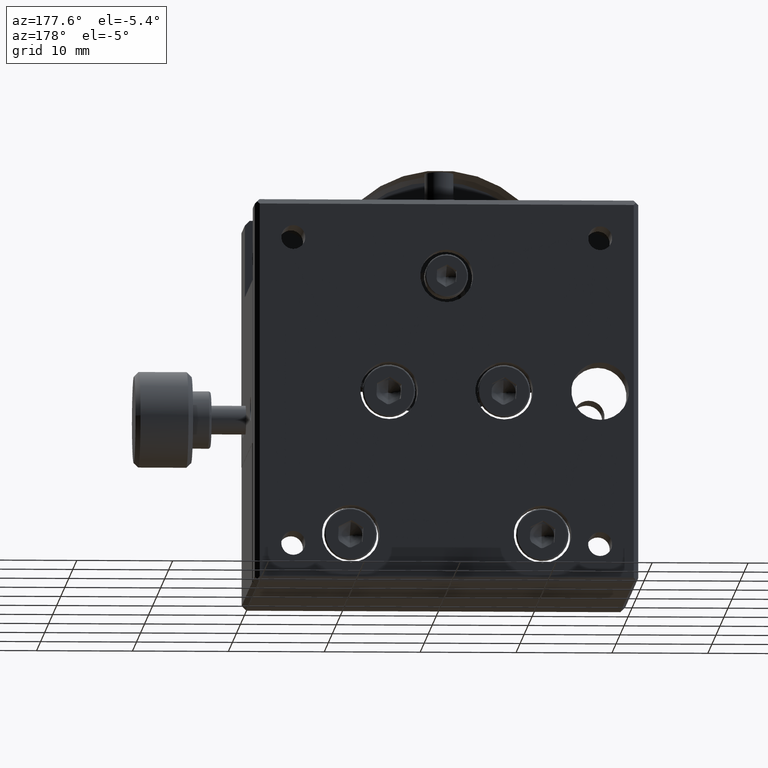
[diagram: clean part render]
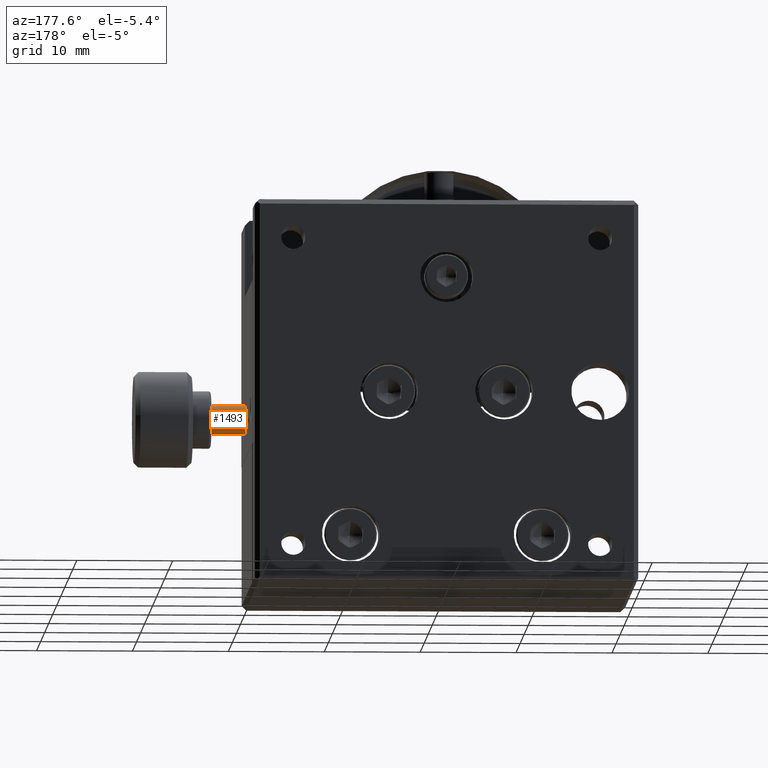
[diagram: same view with one face highlighted and labeled with its STEP entity id]
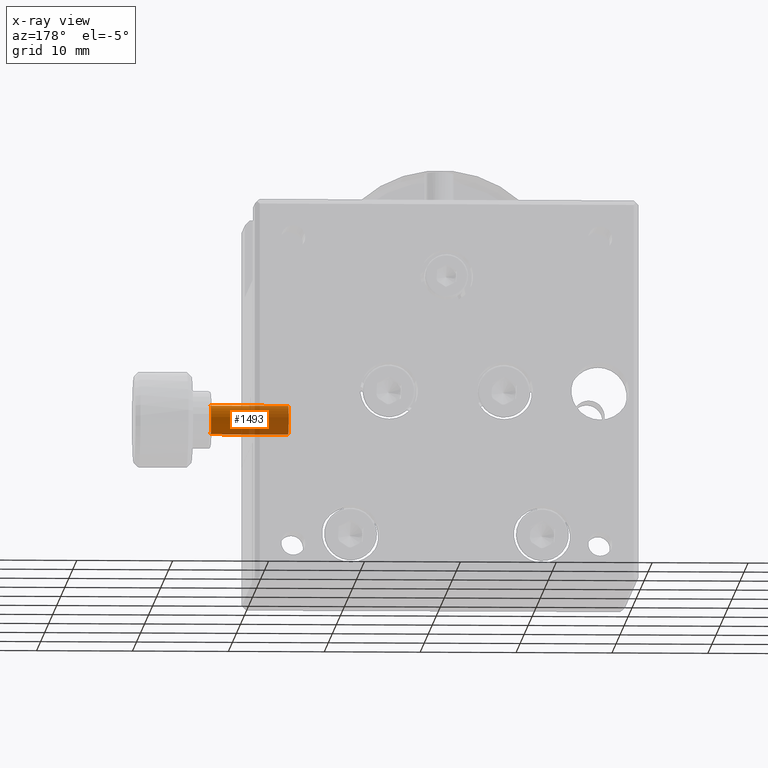
[diagram: x-ray of the same camera — body ghosted, the highlighted face saturated]
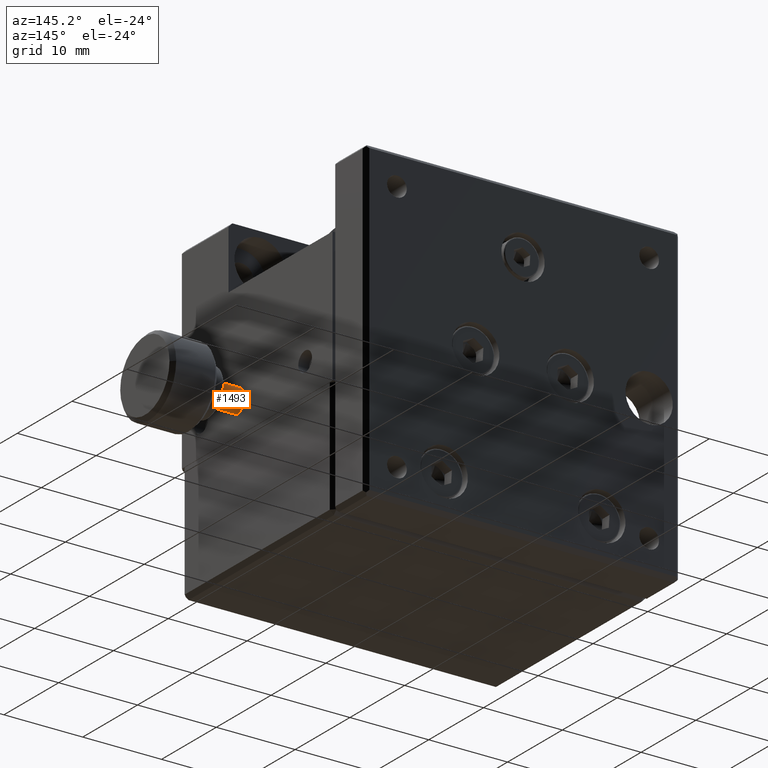
[diagram: same view with one face highlighted and labeled with its STEP entity id]
A machine part, auxiliary view. The second image highlights one B-rep face of the part: STEP entity #1493.
The next image is the same camera in x-ray: the body ghosted, the highlighted face saturated — about 51% of this face is hidden behind the body in this view.
A second angle (auxiliary view) of the same face is appended — the face is thin or edge-on in the first view.
In plain terms, the highlighted cylindrical surface (edge-blend (fillet) strip) has radius 1.5 mm, axis along (1, 0, 0).
Its self-contained STEP definition (entity closure, byte-faithful):
#861 = ORIENTED_EDGE ( 'NONE', *, *, #8537, .T. ) ;
#1493 = ADVANCED_FACE ( 'NONE', ( #6873 ), #11568, .T. ) ;
#1622 = DIRECTION ( 'NONE',  ( 1.000000000000000000, 0.000000000000000000, 0.000000000000000000 ) ) ;
#1723 = EDGE_CURVE ( 'NONE', #10204, #5428, #9968, .T. ) ;
#1820 = CARTESIAN_POINT ( 'NONE',  ( 23.65000000000000924, -17.50000000000000355, -19.50000000000001066 ) ) ;
#1923 = CARTESIAN_POINT ( 'NONE',  ( 15.55000000000000782, -17.50000000000000355, -21.00000000000001066 ) ) ;
#1993 = EDGE_CURVE ( 'NONE', #3076, #5428, #10931, .T. ) ;
#2144 = VERTEX_POINT ( 'NONE', #12030 ) ;
#2267 = VECTOR ( 'NONE', #4641, 1000.000000000000000 ) ;
#2544 = CARTESIAN_POINT ( 'NONE',  ( 31.65000000000000568, -17.50000000000000355, -22.50000000000001421 ) ) ;
#2690 = ORIENTED_EDGE ( 'NONE', *, *, #1993, .F. ) ;
#2740 = CARTESIAN_POINT ( 'NONE',  ( 31.65000000000000568, -17.50000000000000355, -19.50000000000001066 ) ) ;
#2800 = LINE ( 'NONE', #2740, #2267 ) ;
#2803 = DIRECTION ( 'NONE',  ( -1.000000000000000000, -0.000000000000000000, -0.000000000000000000 ) ) ;
#2923 = AXIS2_PLACEMENT_3D ( 'NONE', #8515, #2803, #8576 ) ;
#2940 = ORIENTED_EDGE ( 'NONE', *, *, #10234, .T. ) ;
#3076 = VERTEX_POINT ( 'NONE', #9924 ) ;
#3717 = EDGE_LOOP ( 'NONE', ( #861, #2940, #4640, #2690 ) ) ;
#4640 = ORIENTED_EDGE ( 'NONE', *, *, #1723, .T. ) ;
#4641 = DIRECTION ( 'NONE',  ( 1.000000000000000000, 0.000000000000000000, 0.000000000000000000 ) ) ;
#4741 = DIRECTION ( 'NONE',  ( 1.000000000000000000, 0.000000000000000000, 0.000000000000000000 ) ) ;
#5428 = VERTEX_POINT ( 'NONE', #9360 ) ;
#6873 = FACE_OUTER_BOUND ( 'NONE', #3717, .T. ) ;
#6995 = DIRECTION ( 'NONE',  ( 0.000000000000000000, 0.000000000000000000, -1.000000000000000000 ) ) ;
#7427 = AXIS2_PLACEMENT_3D ( 'NONE', #10600, #9685, #6995 ) ;
#7749 = DIRECTION ( 'NONE',  ( 0.000000000000000000, 0.000000000000000000, -1.000000000000000000 ) ) ;
#8515 = CARTESIAN_POINT ( 'NONE',  ( 23.65000000000000924, -17.50000000000000355, -21.00000000000001066 ) ) ;
#8537 = EDGE_CURVE ( 'NONE', #3076, #2144, #11011, .T. ) ;
#8576 = DIRECTION ( 'NONE',  ( 0.000000000000000000, 0.000000000000000000, -1.000000000000000000 ) ) ;
#8611 = VECTOR ( 'NONE', #1622, 1000.000000000000000 ) ;
#9360 = CARTESIAN_POINT ( 'NONE',  ( 23.65000000000000924, -17.50000000000000355, -22.50000000000001421 ) ) ;
#9685 = DIRECTION ( 'NONE',  ( 1.000000000000000000, 0.000000000000000000, 0.000000000000000000 ) ) ;
#9924 = CARTESIAN_POINT ( 'NONE',  ( 15.55000000000000782, -17.50000000000000355, -22.50000000000001421 ) ) ;
#9968 = CIRCLE ( 'NONE', #2923, 1.500000000000001332 ) ;
#10204 = VERTEX_POINT ( 'NONE', #1820 ) ;
#10234 = EDGE_CURVE ( 'NONE', #2144, #10204, #2800, .T. ) ;
#10600 = CARTESIAN_POINT ( 'NONE',  ( 31.65000000000000568, -17.50000000000000355, -21.00000000000001066 ) ) ;
#10931 = LINE ( 'NONE', #2544, #8611 ) ;
#11011 = CIRCLE ( 'NONE', #11789, 1.500000000000001332 ) ;
#11568 = CYLINDRICAL_SURFACE ( 'NONE', #7427, 1.500000000000001332 ) ;
#11789 = AXIS2_PLACEMENT_3D ( 'NONE', #1923, #4741, #7749 ) ;
#12030 = CARTESIAN_POINT ( 'NONE',  ( 15.55000000000000782, -17.50000000000000355, -19.50000000000001066 ) ) ;